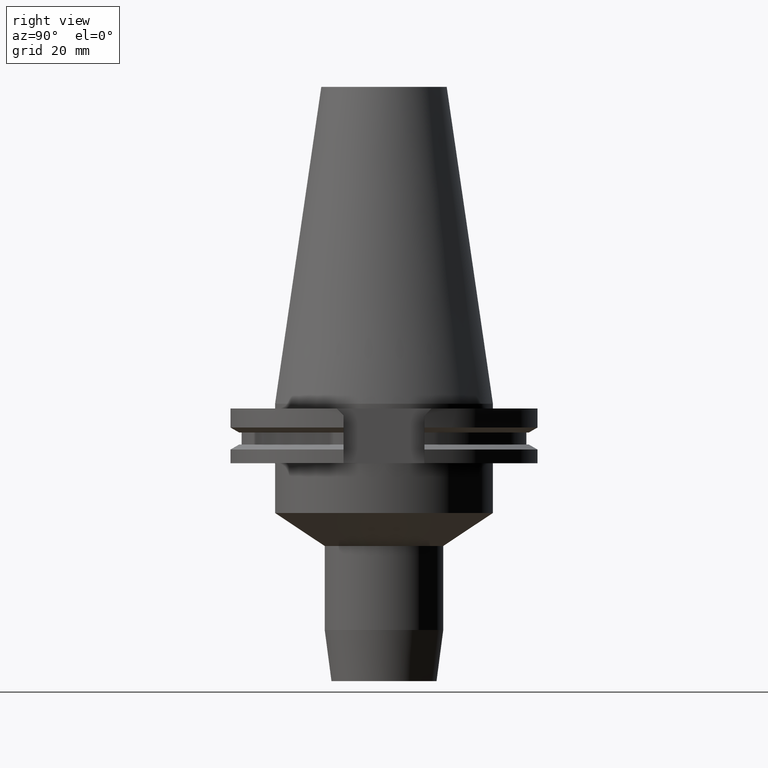
[diagram: clean part render]
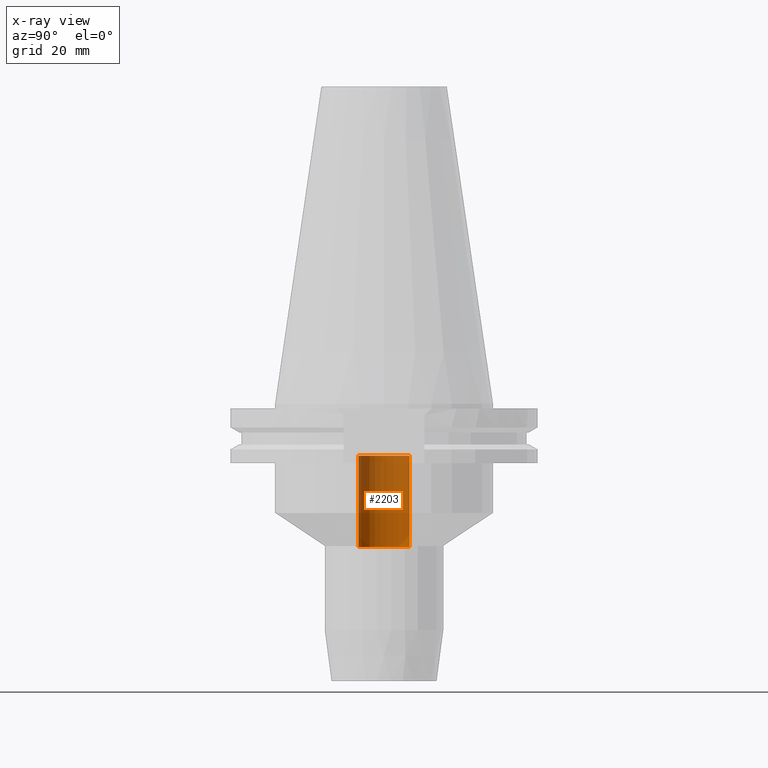
[diagram: x-ray — body ghosted, one internal face saturated and labeled with its STEP entity id]
A machine part, right view, then the same camera in x-ray: the body is ghosted and one INTERNAL B-rep face — a face not visible from any outside direction — is saturated and labeled: STEP entity #2203.
In plain terms, the highlighted cylindrical surface (edge-blend (fillet) strip) has radius 8.2 mm, axis along (0, 0, 1).
Its self-contained STEP definition (entity closure, byte-faithful):
#998=CARTESIAN_POINT('',(0.E0,0.E0,-4.59E1));
#999=DIRECTION('',(0.E0,0.E0,-1.E0));
#1000=DIRECTION('',(0.E0,-1.E0,0.E0));
#1001=AXIS2_PLACEMENT_3D('',#998,#999,#1000);
#1030=DIRECTION('',(0.E0,0.E0,1.E0));
#1031=VECTOR('',#1030,2.92E1);
#1032=CARTESIAN_POINT('',(0.E0,-8.2E0,-4.59E1));
#1033=LINE('',#1032,#1031);
#1037=DIRECTION('',(0.E0,0.E0,1.E0));
#1038=VECTOR('',#1037,2.92E1);
#1039=CARTESIAN_POINT('',(0.E0,8.2E0,-4.59E1));
#1040=LINE('',#1039,#1038);
#1052=CARTESIAN_POINT('',(0.E0,0.E0,-1.67E1));
#1053=DIRECTION('',(0.E0,0.E0,1.E0));
#1054=DIRECTION('',(0.E0,1.E0,0.E0));
#1055=AXIS2_PLACEMENT_3D('',#1052,#1053,#1054);
#1300=CARTESIAN_POINT('',(0.E0,-8.2E0,-4.59E1));
#1301=CARTESIAN_POINT('',(0.E0,8.2E0,-4.59E1));
#1302=VERTEX_POINT('',#1300);
#1303=VERTEX_POINT('',#1301);
#1304=CARTESIAN_POINT('',(0.E0,8.2E0,-1.67E1));
#1305=VERTEX_POINT('',#1304);
#1306=CARTESIAN_POINT('',(0.E0,-8.2E0,-1.67E1));
#1307=VERTEX_POINT('',#1306);
#2189=CARTESIAN_POINT('',(0.E0,0.E0,-9.8425E1));
#2190=DIRECTION('',(0.E0,0.E0,1.E0));
#2191=DIRECTION('',(0.E0,1.E0,0.E0));
#2192=AXIS2_PLACEMENT_3D('',#2189,#2190,#2191);
#2193=CYLINDRICAL_SURFACE('',#2192,8.2E0);
#2195=ORIENTED_EDGE('',*,*,#2194,.F.);
#2196=ORIENTED_EDGE('',*,*,#2178,.F.);
#2198=ORIENTED_EDGE('',*,*,#2197,.T.);
#2200=ORIENTED_EDGE('',*,*,#2199,.F.);
#2201=EDGE_LOOP('',(#2195,#2196,#2198,#2200));
#2202=FACE_OUTER_BOUND('',#2201,.F.);
#1002=CIRCLE('',#1001,8.2E0);
#1056=CIRCLE('',#1055,8.2E0);
#2178=EDGE_CURVE('',#1302,#1303,#1002,.T.);
#2194=EDGE_CURVE('',#1303,#1305,#1040,.T.);
#2197=EDGE_CURVE('',#1302,#1307,#1033,.T.);
#2199=EDGE_CURVE('',#1305,#1307,#1056,.T.);
#2203=ADVANCED_FACE('',(#2202),#2193,.F.);